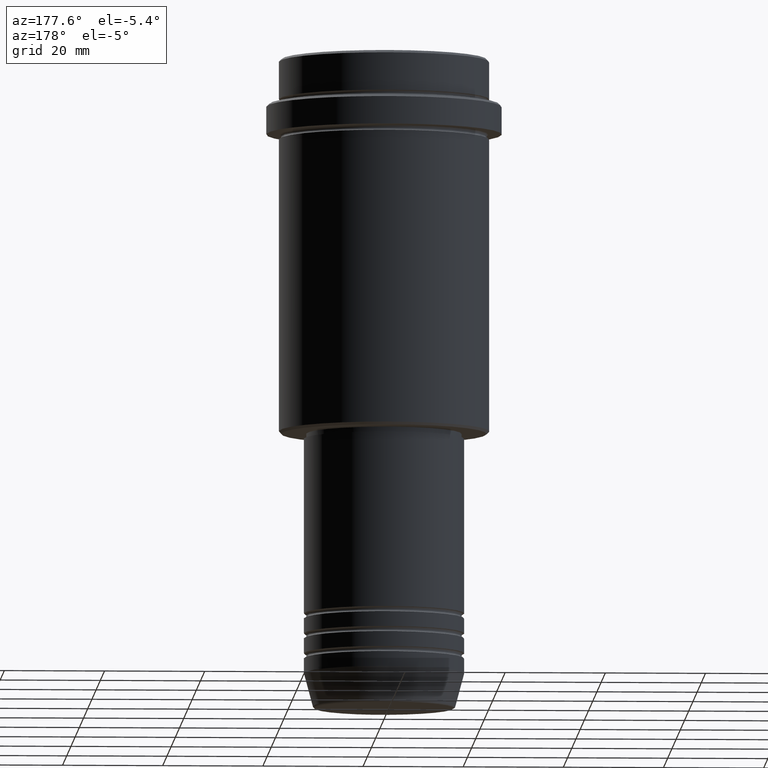
[diagram: clean part render]
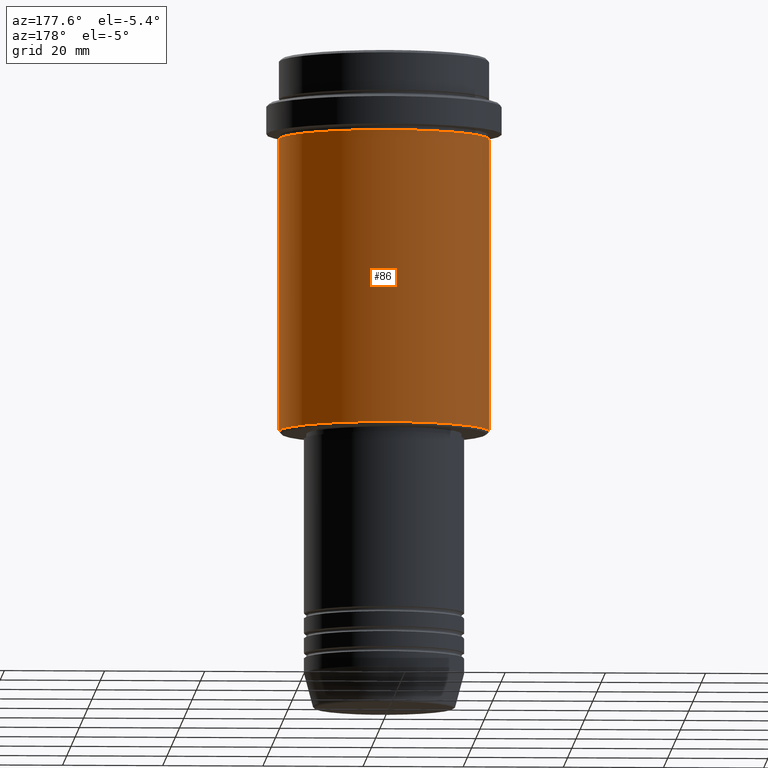
[diagram: same view with one face highlighted and labeled with its STEP entity id]
A machine part, auxiliary view. The second image highlights one B-rep face of the part: STEP entity #86.
In plain terms, the highlighted cylindrical surface (partial cylindrical patch) has radius 21 mm, axis along (-0, -0, 1).
Its self-contained STEP definition (entity closure, byte-faithful):
#18 = DIRECTION ( 'NONE',  ( 1.000000000000000000, 0.000000000000000000, 0.000000000000000000 ) ) ;
#19 = DIRECTION ( 'NONE',  ( -0.000000000000000000, -0.000000000000000000, 1.000000000000000000 ) ) ;
#86 = ADVANCED_FACE ( 'NONE', ( #1211 ), #1099, .T. ) ;
#119 = CARTESIAN_POINT ( 'NONE',  ( 0.000000000000000000, 0.000000000000000000, 0.000000000000000000 ) ) ;
#142 = DIRECTION ( 'NONE',  ( 1.000000000000000000, 0.000000000000000000, 0.000000000000000000 ) ) ;
#246 = LINE ( 'NONE', #254, #1294 ) ;
#254 = CARTESIAN_POINT ( 'NONE',  ( -21.00000000000000000, 2.571758278209441661E-15, 0.000000000000000000 ) ) ;
#267 = ORIENTED_EDGE ( 'NONE', *, *, #1059, .F. ) ;
#292 = CARTESIAN_POINT ( 'NONE',  ( 21.00000000000000000, 0.000000000000000000, -74.50000000000002842 ) ) ;
#304 = CARTESIAN_POINT ( 'NONE',  ( -21.00000000000000000, 2.571758278209441661E-15, -16.00000000000000355 ) ) ;
#307 = VERTEX_POINT ( 'NONE', #1388 ) ;
#415 = DIRECTION ( 'NONE',  ( -1.000000000000000000, 0.000000000000000000, 0.000000000000000000 ) ) ;
#490 = AXIS2_PLACEMENT_3D ( 'NONE', #119, #1072, #18 ) ;
#497 = CARTESIAN_POINT ( 'NONE',  ( -21.00000000000000000, 2.571758278209441661E-15, -74.50000000000002842 ) ) ;
#504 = VERTEX_POINT ( 'NONE', #304 ) ;
#540 = CIRCLE ( 'NONE', #745, 21.00000000000000000 ) ;
#575 = CARTESIAN_POINT ( 'NONE',  ( 0.000000000000000000, 0.000000000000000000, -16.00000000000000355 ) ) ;
#637 = ORIENTED_EDGE ( 'NONE', *, *, #928, .T. ) ;
#638 = CARTESIAN_POINT ( 'NONE',  ( 0.000000000000000000, 0.000000000000000000, -74.50000000000002842 ) ) ;
#650 = CARTESIAN_POINT ( 'NONE',  ( 21.00000000000000000, 0.000000000000000000, 0.000000000000000000 ) ) ;
#684 = VERTEX_POINT ( 'NONE', #292 ) ;
#745 = AXIS2_PLACEMENT_3D ( 'NONE', #575, #1346, #142 ) ;
#748 = LINE ( 'NONE', #650, #1366 ) ;
#794 = AXIS2_PLACEMENT_3D ( 'NONE', #638, #1315, #415 ) ;
#848 = ORIENTED_EDGE ( 'NONE', *, *, #1007, .T. ) ;
#928 = EDGE_CURVE ( 'NONE', #684, #1199, #1108, .T. ) ;
#966 = EDGE_LOOP ( 'NONE', ( #637, #848, #267, #1132 ) ) ;
#1007 = EDGE_CURVE ( 'NONE', #1199, #504, #246, .T. ) ;
#1059 = EDGE_CURVE ( 'NONE', #307, #504, #540, .T. ) ;
#1072 = DIRECTION ( 'NONE',  ( -0.000000000000000000, -0.000000000000000000, 1.000000000000000000 ) ) ;
#1099 = CYLINDRICAL_SURFACE ( 'NONE', #490, 21.00000000000000000 ) ;
#1108 = CIRCLE ( 'NONE', #794, 21.00000000000000000 ) ;
#1132 = ORIENTED_EDGE ( 'NONE', *, *, #1310, .F. ) ;
#1180 = DIRECTION ( 'NONE',  ( -0.000000000000000000, -0.000000000000000000, 1.000000000000000000 ) ) ;
#1199 = VERTEX_POINT ( 'NONE', #497 ) ;
#1211 = FACE_OUTER_BOUND ( 'NONE', #966, .T. ) ;
#1294 = VECTOR ( 'NONE', #19, 1000.000000000000000 ) ;
#1310 = EDGE_CURVE ( 'NONE', #684, #307, #748, .T. ) ;
#1315 = DIRECTION ( 'NONE',  ( -0.000000000000000000, -0.000000000000000000, 1.000000000000000000 ) ) ;
#1346 = DIRECTION ( 'NONE',  ( -0.000000000000000000, -0.000000000000000000, 1.000000000000000000 ) ) ;
#1366 = VECTOR ( 'NONE', #1180, 1000.000000000000000 ) ;
#1388 = CARTESIAN_POINT ( 'NONE',  ( 21.00000000000000000, 0.000000000000000000, -16.00000000000000355 ) ) ;